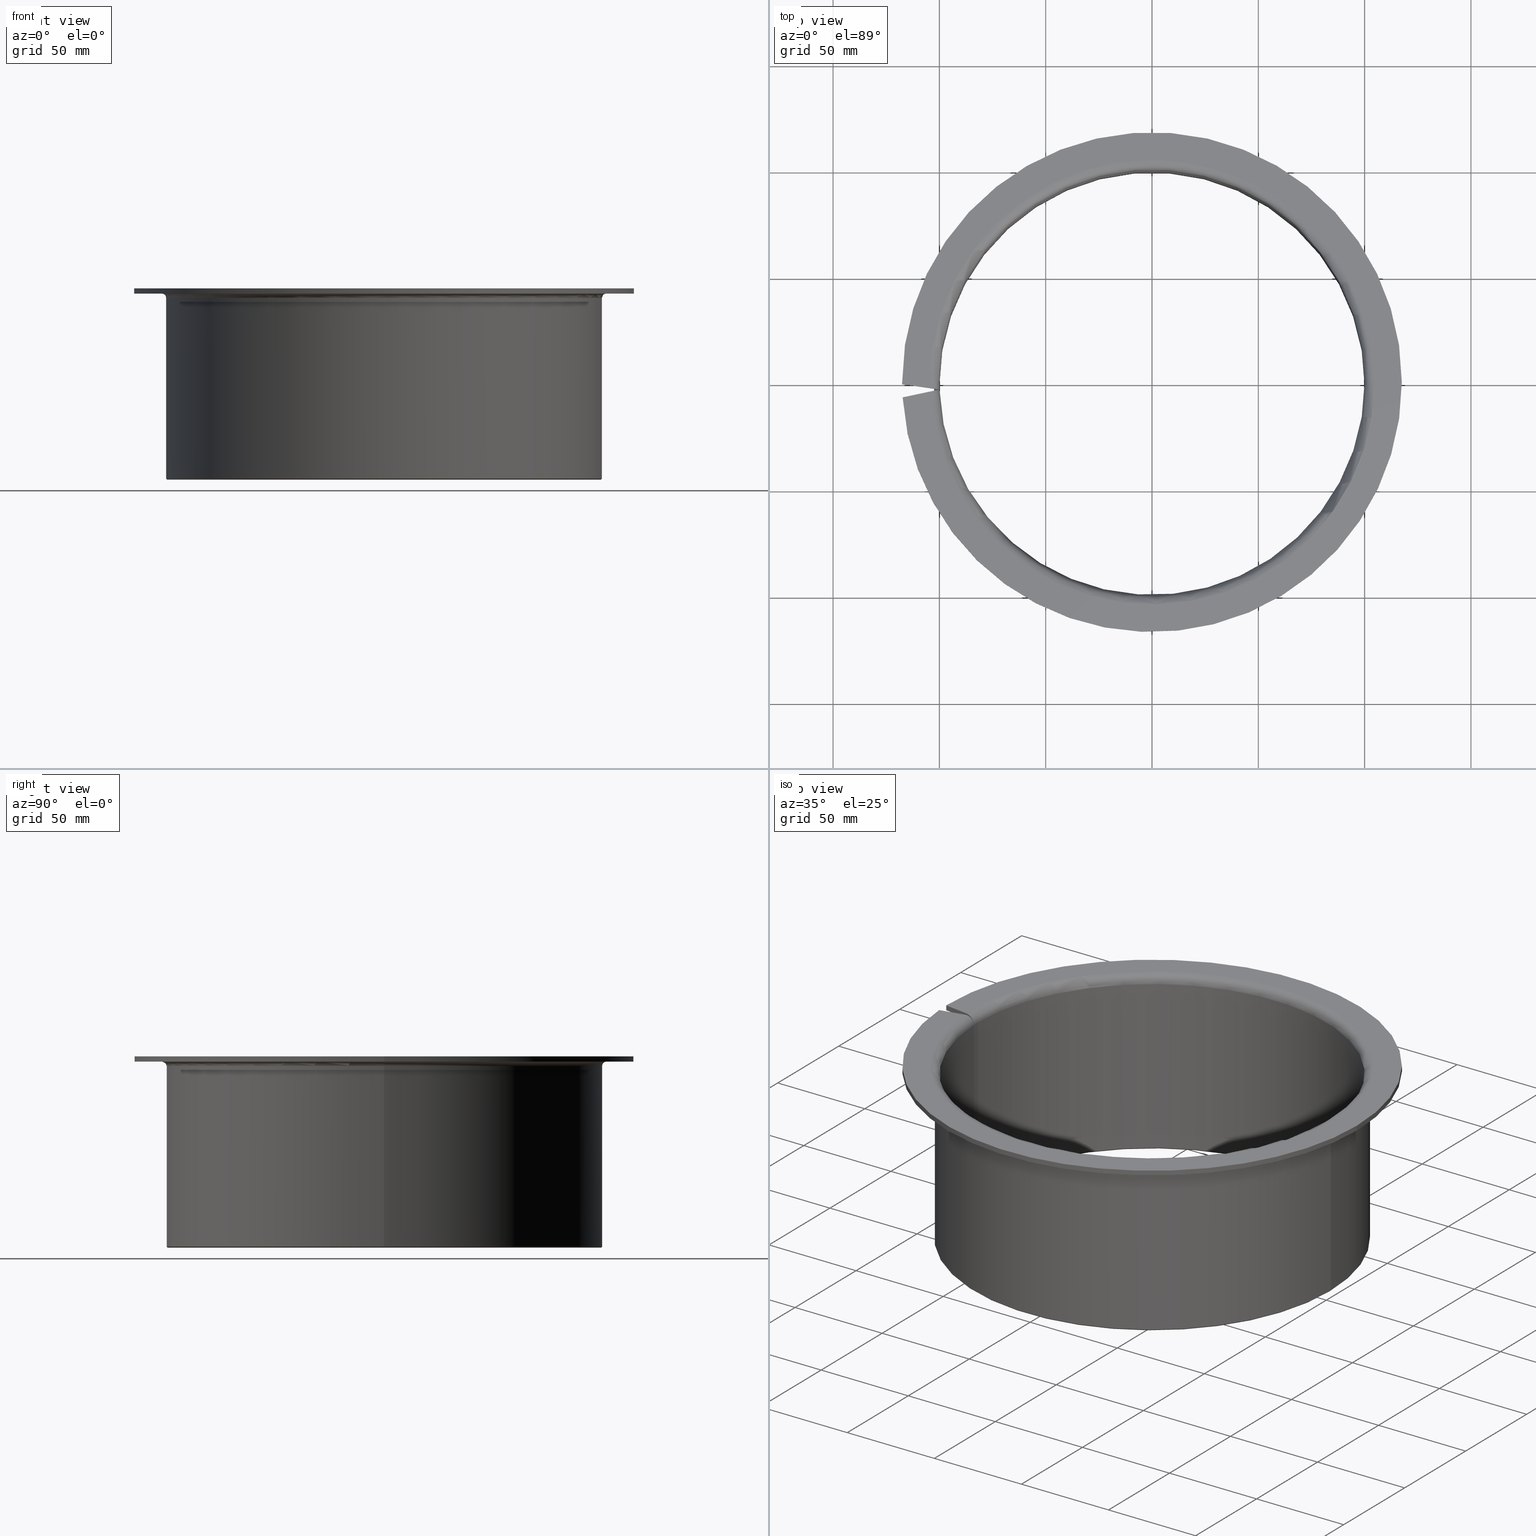
[diagram: canonical four-view strip — front | top / right | iso, engineering-drawing reading convention]
A machine part, canonical four-view strip (front | top / right | iso — engineering-drawing reading convention). The complete STEP part file that produces these views, byte-faithful:
ISO-10303-21;
HEADER;
FILE_DESCRIPTION(('STEP AP203'),'1');
FILE_NAME('490-ABB090-20090.stp','2016-09-23T15:05:36',(' '),(' '),'Spatial InterOp 3D',' ',' ');
FILE_SCHEMA(('CONFIG_CONTROL_DESIGN'));
ENDSEC;
DATA;
#1=DESIGN_CONTEXT('',#27,'design');
#2=APPLICATION_PROTOCOL_DEFINITION('INTERNATIONAL STANDARD','config_control_design',1994,#27);
#3=PRODUCT_CATEGORY_RELATIONSHIP('NONE','NONE',#28,#29);
#4=DATE_AND_TIME(#30,#31);
#5=DATE_TIME_ROLE('creation_date');
#6=DATE_TIME_ROLE('classification_date');
#7=PERSON_AND_ORGANIZATION_ROLE('creator');
#8=PERSON_AND_ORGANIZATION_ROLE('design_supplier');
#9=PERSON_AND_ORGANIZATION_ROLE('classification_officer');
#10=PERSON_AND_ORGANIZATION_ROLE('design_owner');
#11=APPROVAL_PERSON_ORGANIZATION(#32,#33,#34);
#12=APPROVAL_DATE_TIME(#4,#33);
#13=CC_DESIGN_APPROVAL(#33,(#35,#36,#37));
#14=CC_DESIGN_DATE_AND_TIME_ASSIGNMENT(#4,#5,(#37));
#15=CC_DESIGN_DATE_AND_TIME_ASSIGNMENT(#4,#6,(#35));
#16=CC_DESIGN_PERSON_AND_ORGANIZATION_ASSIGNMENT(#32,#10,(#38));
#17=CC_DESIGN_PERSON_AND_ORGANIZATION_ASSIGNMENT(#32,#7,(#37));
#18=CC_DESIGN_PERSON_AND_ORGANIZATION_ASSIGNMENT(#32,#7,(#36));
#19=CC_DESIGN_PERSON_AND_ORGANIZATION_ASSIGNMENT(#32,#8,(#36));
#20=CC_DESIGN_SECURITY_CLASSIFICATION(#35,(#36));
#21=CC_DESIGN_PERSON_AND_ORGANIZATION_ASSIGNMENT(#32,#9,(#35));
#22=SHAPE_DEFINITION_REPRESENTATION(#39,#40);
#23= (GEOMETRIC_REPRESENTATION_CONTEXT(3)GLOBAL_UNCERTAINTY_ASSIGNED_CONTEXT((#43))GLOBAL_UNIT_ASSIGNED_CONTEXT((#45,#46,#47))REPRESENTATION_CONTEXT('NONE','WORKSPACE'));
#27=APPLICATION_CONTEXT('CONFIGURATION CONTROLLED 3D DESIGNS OF MECHANICAL PARTS AND ASSEMBLIES');
#28=PRODUCT_CATEGORY('part','NONE');
#29=PRODUCT_RELATED_PRODUCT_CATEGORY('detail',' ',(#38));
#30=CALENDAR_DATE(2016,23,8);
#31=LOCAL_TIME(17,5,36.0,#49);
#32=PERSON_AND_ORGANIZATION(#50,#51);
#33=APPROVAL(#52,'SOLID MODEL');
#34=APPROVAL_ROLE('APPROVED');
#35=SECURITY_CLASSIFICATION('','',#53);
#36=PRODUCT_DEFINITION_FORMATION_WITH_SPECIFIED_SOURCE(' ','NONE',#38,.NOT_KNOWN.);
#37=PRODUCT_DEFINITION('NONE','NONE',#36,#1);
#38=PRODUCT('1','1','PART-1-DESC',(#54));
#39=PRODUCT_DEFINITION_SHAPE('NONE','NONE',#37);
#40=ADVANCED_BREP_SHAPE_REPRESENTATION('1',(#55,#56),#23);
#43=UNCERTAINTY_MEASURE_WITH_UNIT(LENGTH_MEASURE(1.0E-006),#45,'','');
#45= (CONVERSION_BASED_UNIT('MILLIMETRE',#59)LENGTH_UNIT()NAMED_UNIT(#62));
#46= (NAMED_UNIT(#64)PLANE_ANGLE_UNIT()SI_UNIT($,.RADIAN.));
#47= (NAMED_UNIT(#64)SOLID_ANGLE_UNIT()SI_UNIT($,.STERADIAN.));
#49=COORDINATED_UNIVERSAL_TIME_OFFSET(1,0,.AHEAD.);
#50=PERSON('','UNSPECIFIED',$,$,$,$);
#51=ORGANIZATION('UNSPECIFIED','UNSPECIFIED','UNSPECIFIED');
#52=APPROVAL_STATUS('approved');
#53=SECURITY_CLASSIFICATION_LEVEL('unclassified');
#54=MECHANICAL_CONTEXT('',#27,'mechanical');
#55=MANIFOLD_SOLID_BREP('1',#70);
#56=AXIS2_PLACEMENT_3D('',#71,#72,#73);
#59=LENGTH_MEASURE_WITH_UNIT(LENGTH_MEASURE(1.0),#74);
#62=DIMENSIONAL_EXPONENTS(1.0,0.0,0.0,0.0,0.0,0.0,0.0);
#64=DIMENSIONAL_EXPONENTS(0.0,0.0,0.0,0.0,0.0,0.0,0.0);
#70=CLOSED_SHELL('',(#75,#76,#77,#78,#79,#80,#81,#82,#83,#84,#85,#86,#87,#88,#89,#90,#91,#92,#93,#94,#95,#96,#97,#98,#99,#100));
#71=CARTESIAN_POINT('',(0.0,0.0,0.0));
#72=DIRECTION('',(0.0,0.0,1.0));
#73=DIRECTION('',(1.0,0.0,0.0));
#74= (NAMED_UNIT(#62)LENGTH_UNIT()SI_UNIT(.MILLI.,.METRE.));
#75=ADVANCED_FACE('',(#102),#103,.F.);
#76=ADVANCED_FACE('',(#104),#105,.F.);
#77=ADVANCED_FACE('',(#106),#107,.T.);
#78=ADVANCED_FACE('',(#108),#109,.T.);
#79=ADVANCED_FACE('',(#110),#111,.T.);
#80=ADVANCED_FACE('',(#112),#113,.T.);
#81=ADVANCED_FACE('',(#114),#115,.F.);
#82=ADVANCED_FACE('',(#116),#117,.F.);
#83=ADVANCED_FACE('',(#118),#119,.T.);
#84=ADVANCED_FACE('',(#120),#121,.T.);
#85=ADVANCED_FACE('',(#122),#123,.T.);
#86=ADVANCED_FACE('',(#124),#125,.T.);
#87=ADVANCED_FACE('',(#126),#127,.F.);
#88=ADVANCED_FACE('',(#128),#129,.F.);
#89=ADVANCED_FACE('',(#130),#131,.T.);
#90=ADVANCED_FACE('',(#132),#133,.F.);
#91=ADVANCED_FACE('',(#134),#135,.T.);
#92=ADVANCED_FACE('',(#136),#137,.T.);
#93=ADVANCED_FACE('',(#138),#139,.T.);
#94=ADVANCED_FACE('',(#140),#141,.T.);
#95=ADVANCED_FACE('',(#142),#143,.F.);
#96=ADVANCED_FACE('',(#144),#145,.T.);
#97=ADVANCED_FACE('',(#146),#147,.T.);
#98=ADVANCED_FACE('',(#148),#149,.T.);
#99=ADVANCED_FACE('',(#150),#151,.F.);
#100=ADVANCED_FACE('',(#152),#153,.F.);
#102=FACE_OUTER_BOUND('',#154,.T.);
#103=CONICAL_SURFACE('',#155,100.25,0.785398163397455);
#104=FACE_OUTER_BOUND('',#156,.T.);
#105=CONICAL_SURFACE('',#157,100.25,0.785398163397455);
#106=FACE_OUTER_BOUND('',#158,.T.);
#107=CONICAL_SURFACE('',#159,102.25,0.785398163397455);
#108=FACE_OUTER_BOUND('',#160,.T.);
#109=CONICAL_SURFACE('',#161,102.25,0.785398163397455);
#110=FACE_OUTER_BOUND('',#162,.T.);
#111=CYLINDRICAL_SURFACE('',#163,102.5);
#112=FACE_OUTER_BOUND('',#164,.T.);
#113=CYLINDRICAL_SURFACE('',#165,102.5);
#114=FACE_OUTER_BOUND('',#166,.T.);
#115=TOROIDAL_SURFACE('',#167,104.5,2.0);
#116=FACE_OUTER_BOUND('',#168,.T.);
#117=TOROIDAL_SURFACE('',#169,104.5,2.0);
#118=FACE_OUTER_BOUND('',#170,.T.);
#119=CYLINDRICAL_SURFACE('',#171,117.5);
#120=FACE_OUTER_BOUND('',#172,.T.);
#121=CYLINDRICAL_SURFACE('',#173,117.5);
#122=FACE_OUTER_BOUND('',#174,.T.);
#123=TOROIDAL_SURFACE('',#175,104.5,4.5);
#124=FACE_OUTER_BOUND('',#176,.T.);
#125=TOROIDAL_SURFACE('',#177,104.5,4.5);
#126=FACE_OUTER_BOUND('',#178,.T.);
#127=CYLINDRICAL_SURFACE('',#179,100.0);
#128=FACE_OUTER_BOUND('',#180,.T.);
#129=CYLINDRICAL_SURFACE('',#181,100.0);
#130=FACE_OUTER_BOUND('',#182,.T.);
#131=PLANE('',#183);
#132=FACE_OUTER_BOUND('',#184,.T.);
#133=CYLINDRICAL_SURFACE('',#185,100.0);
#134=FACE_OUTER_BOUND('',#186,.T.);
#135=TOROIDAL_SURFACE('',#187,104.5,4.5);
#136=FACE_OUTER_BOUND('',#188,.T.);
#137=PLANE('',#189);
#138=FACE_OUTER_BOUND('',#190,.T.);
#139=CYLINDRICAL_SURFACE('',#191,117.5);
#140=FACE_OUTER_BOUND('',#192,.T.);
#141=PLANE('',#193);
#142=FACE_OUTER_BOUND('',#194,.T.);
#143=TOROIDAL_SURFACE('',#195,104.5,2.0);
#144=FACE_OUTER_BOUND('',#196,.T.);
#145=CYLINDRICAL_SURFACE('',#197,102.5);
#146=FACE_OUTER_BOUND('',#198,.T.);
#147=CONICAL_SURFACE('',#199,102.25,0.785398163397455);
#148=FACE_OUTER_BOUND('',#200,.T.);
#149=PLANE('',#201);
#150=FACE_OUTER_BOUND('',#202,.T.);
#151=CONICAL_SURFACE('',#203,100.25,0.785398163397455);
#152=FACE_OUTER_BOUND('',#204,.T.);
#153=PLANE('',#205);
#154=EDGE_LOOP('',(#206,#207,#208,#209));
#155=AXIS2_PLACEMENT_3D('',#210,#211,#212);
#156=EDGE_LOOP('',(#213,#214,#215,#216));
#157=AXIS2_PLACEMENT_3D('',#217,#218,#219);
#158=EDGE_LOOP('',(#220,#221,#222,#223));
#159=AXIS2_PLACEMENT_3D('',#224,#225,#226);
#160=EDGE_LOOP('',(#227,#228,#229,#230));
#161=AXIS2_PLACEMENT_3D('',#231,#232,#233);
#162=EDGE_LOOP('',(#234,#235,#236,#237));
#163=AXIS2_PLACEMENT_3D('',#238,#239,#240);
#164=EDGE_LOOP('',(#241,#242,#243,#244));
#165=AXIS2_PLACEMENT_3D('',#245,#246,#247);
#166=EDGE_LOOP('',(#248,#249,#250,#251));
#167=AXIS2_PLACEMENT_3D('',#252,#253,#254);
#168=EDGE_LOOP('',(#255,#256,#257,#258));
#169=AXIS2_PLACEMENT_3D('',#259,#260,#261);
#170=EDGE_LOOP('',(#262,#263,#264,#265));
#171=AXIS2_PLACEMENT_3D('',#266,#267,#268);
#172=EDGE_LOOP('',(#269,#270,#271,#272));
#173=AXIS2_PLACEMENT_3D('',#273,#274,#275);
#174=EDGE_LOOP('',(#276,#277,#278,#279));
#175=AXIS2_PLACEMENT_3D('',#280,#281,#282);
#176=EDGE_LOOP('',(#283,#284,#285,#286));
#177=AXIS2_PLACEMENT_3D('',#287,#288,#289);
#178=EDGE_LOOP('',(#290,#291,#292,#293));
#179=AXIS2_PLACEMENT_3D('',#294,#295,#296);
#180=EDGE_LOOP('',(#297,#298,#299,#300));
#181=AXIS2_PLACEMENT_3D('',#301,#302,#303);
#182=EDGE_LOOP('',(#304,#305,#306,#307,#308,#309,#310,#311,#312,#313));
#183=AXIS2_PLACEMENT_3D('',#314,#315,#316);
#184=EDGE_LOOP('',(#317,#318,#319,#320));
#185=AXIS2_PLACEMENT_3D('',#321,#322,#323);
#186=EDGE_LOOP('',(#324,#325,#326,#327));
#187=AXIS2_PLACEMENT_3D('',#328,#329,#330);
#188=EDGE_LOOP('',(#331,#332,#333,#334,#335,#336,#337,#338));
#189=AXIS2_PLACEMENT_3D('',#339,#340,#341);
#190=EDGE_LOOP('',(#342,#343,#344,#345));
#191=AXIS2_PLACEMENT_3D('',#346,#347,#348);
#192=EDGE_LOOP('',(#349,#350,#351,#352,#353,#354,#355,#356));
#193=AXIS2_PLACEMENT_3D('',#357,#358,#359);
#194=EDGE_LOOP('',(#360,#361,#362,#363));
#195=AXIS2_PLACEMENT_3D('',#364,#365,#366);
#196=EDGE_LOOP('',(#367,#368,#369,#370));
#197=AXIS2_PLACEMENT_3D('',#371,#372,#373);
#198=EDGE_LOOP('',(#374,#375,#376,#377));
#199=AXIS2_PLACEMENT_3D('',#378,#379,#380);
#200=EDGE_LOOP('',(#381,#382,#383,#384,#385,#386,#387,#388));
#201=AXIS2_PLACEMENT_3D('',#389,#390,#391);
#202=EDGE_LOOP('',(#392,#393,#394,#395));
#203=AXIS2_PLACEMENT_3D('',#396,#397,#398);
#204=EDGE_LOOP('',(#399,#400,#401,#402,#403,#404,#405,#406,#407,#408));
#205=AXIS2_PLACEMENT_3D('',#409,#410,#411);
#206=ORIENTED_EDGE('',*,*,#412,.T.);
#207=ORIENTED_EDGE('',*,*,#413,.F.);
#208=ORIENTED_EDGE('',*,*,#414,.T.);
#209=ORIENTED_EDGE('',*,*,#415,.T.);
#210=CARTESIAN_POINT('',(1.38670259942823E-030,7.30296441936522E-016,0.250000000000002));
#211=DIRECTION('',(1.16269284789061E-031,6.12323399573677E-017,-1.0));
#212=DIRECTION('',(-1.0,1.87715863181855E-015,-1.32646929163973E-033));
#213=ORIENTED_EDGE('',*,*,#416,.F.);
#214=ORIENTED_EDGE('',*,*,#417,.F.);
#215=ORIENTED_EDGE('',*,*,#412,.F.);
#216=ORIENTED_EDGE('',*,*,#418,.T.);
#217=CARTESIAN_POINT('',(1.38670259942823E-030,7.30296441936522E-016,0.250000000000002));
#218=DIRECTION('',(1.16269284789061E-031,6.12323399573677E-017,-1.0));
#219=DIRECTION('',(-1.0,1.87715863181855E-015,-1.32646929163973E-033));
#220=ORIENTED_EDGE('',*,*,#419,.F.);
#221=ORIENTED_EDGE('',*,*,#420,.F.);
#222=ORIENTED_EDGE('',*,*,#421,.T.);
#223=ORIENTED_EDGE('',*,*,#422,.T.);
#224=CARTESIAN_POINT('',(1.38670259942823E-030,7.30296441936522E-016,0.250000000000002));
#225=DIRECTION('',(-1.16269284789061E-031,-6.12323399573677E-017,1.0));
#226=DIRECTION('',(-1.0,1.87715863181855E-015,-1.32646929163973E-033));
#227=ORIENTED_EDGE('',*,*,#423,.F.);
#228=ORIENTED_EDGE('',*,*,#424,.T.);
#229=ORIENTED_EDGE('',*,*,#425,.T.);
#230=ORIENTED_EDGE('',*,*,#426,.F.);
#231=CARTESIAN_POINT('',(1.38670259942823E-030,7.30296441936522E-016,0.250000000000002));
#232=DIRECTION('',(-1.16269284789061E-031,-6.12323399573677E-017,1.0));
#233=DIRECTION('',(-1.0,1.87715863181855E-015,-1.32646929163973E-033));
#234=ORIENTED_EDGE('',*,*,#427,.F.);
#235=ORIENTED_EDGE('',*,*,#428,.F.);
#236=ORIENTED_EDGE('',*,*,#429,.T.);
#237=ORIENTED_EDGE('',*,*,#420,.T.);
#238=CARTESIAN_POINT('',(-2.8295281413662E-030,-1.49014960731379E-015,43.0));
#239=DIRECTION('',(-1.16269284789061E-031,-6.12323399573677E-017,1.0));
#240=DIRECTION('',(-1.0,1.87715863181855E-015,-1.32646929163974E-033));
#241=ORIENTED_EDGE('',*,*,#430,.F.);
#242=ORIENTED_EDGE('',*,*,#426,.T.);
#243=ORIENTED_EDGE('',*,*,#431,.T.);
#244=ORIENTED_EDGE('',*,*,#432,.F.);
#245=CARTESIAN_POINT('',(-2.8295281413662E-030,-1.49014960731379E-015,43.0));
#246=DIRECTION('',(-1.16269284789061E-031,-6.12323399573677E-017,1.0));
#247=DIRECTION('',(-1.0,1.87715863181855E-015,-1.32646929163974E-033));
#248=ORIENTED_EDGE('',*,*,#433,.T.);
#249=ORIENTED_EDGE('',*,*,#432,.T.);
#250=ORIENTED_EDGE('',*,*,#434,.T.);
#251=ORIENTED_EDGE('',*,*,#435,.F.);
#252=CARTESIAN_POINT('',(2.22044604925031E-015,-3.71059565656411E-015,85.5));
#253=DIRECTION('',(-1.16269284789061E-031,-6.12323399573677E-017,1.0));
#254=DIRECTION('',(-1.0,1.89882151931499E-015,0.0));
#255=ORIENTED_EDGE('',*,*,#436,.F.);
#256=ORIENTED_EDGE('',*,*,#437,.T.);
#257=ORIENTED_EDGE('',*,*,#433,.F.);
#258=ORIENTED_EDGE('',*,*,#438,.F.);
#259=CARTESIAN_POINT('',(2.22044604925031E-015,-3.71059565656411E-015,85.5));
#260=DIRECTION('',(-1.16269284789061E-031,-6.12323399573677E-017,1.0));
#261=DIRECTION('',(-1.0,1.89882151931499E-015,0.0));
#262=ORIENTED_EDGE('',*,*,#439,.F.);
#263=ORIENTED_EDGE('',*,*,#440,.F.);
#264=ORIENTED_EDGE('',*,*,#441,.T.);
#265=ORIENTED_EDGE('',*,*,#442,.T.);
#266=CARTESIAN_POINT('',(-7.04575888216064E-030,-3.7105956565641E-015,88.75));
#267=DIRECTION('',(-1.16269284789061E-031,-6.12323399573677E-017,1.0));
#268=DIRECTION('',(-1.0,1.87715863181855E-015,-1.32646929163973E-033));
#269=ORIENTED_EDGE('',*,*,#443,.F.);
#270=ORIENTED_EDGE('',*,*,#444,.T.);
#271=ORIENTED_EDGE('',*,*,#445,.T.);
#272=ORIENTED_EDGE('',*,*,#446,.F.);
#273=CARTESIAN_POINT('',(-7.04575888216064E-030,-3.7105956565641E-015,88.75));
#274=DIRECTION('',(-1.16269284789061E-031,-6.12323399573677E-017,1.0));
#275=DIRECTION('',(-1.0,1.87715863181855E-015,-1.32646929163973E-033));
#276=ORIENTED_EDGE('',*,*,#447,.F.);
#277=ORIENTED_EDGE('',*,*,#448,.F.);
#278=ORIENTED_EDGE('',*,*,#449,.T.);
#279=ORIENTED_EDGE('',*,*,#450,.T.);
#280=CARTESIAN_POINT('',(2.22044604925031E-015,-3.71059565656411E-015,85.5));
#281=DIRECTION('',(-1.16269284789061E-031,-6.12323399573677E-017,1.0));
#282=DIRECTION('',(-1.0,1.89882151931499E-015,0.0));
#283=ORIENTED_EDGE('',*,*,#451,.F.);
#284=ORIENTED_EDGE('',*,*,#452,.T.);
#285=ORIENTED_EDGE('',*,*,#453,.T.);
#286=ORIENTED_EDGE('',*,*,#454,.F.);
#287=CARTESIAN_POINT('',(2.22044604925031E-015,-3.71059565656411E-015,85.5));
#288=DIRECTION('',(-1.16269284789061E-031,-6.12323399573677E-017,1.0));
#289=DIRECTION('',(-1.0,1.89882151931499E-015,0.0));
#290=ORIENTED_EDGE('',*,*,#455,.T.);
#291=ORIENTED_EDGE('',*,*,#415,.F.);
#292=ORIENTED_EDGE('',*,*,#456,.T.);
#293=ORIENTED_EDGE('',*,*,#448,.T.);
#294=CARTESIAN_POINT('',(-2.8295281413662E-030,-1.49014960731379E-015,43.0));
#295=DIRECTION('',(-1.16269284789061E-031,-6.12323399573677E-017,1.0));
#296=DIRECTION('',(-1.0,1.87715863181855E-015,-1.32646929163972E-033));
#297=ORIENTED_EDGE('',*,*,#457,.F.);
#298=ORIENTED_EDGE('',*,*,#418,.F.);
#299=ORIENTED_EDGE('',*,*,#455,.F.);
#300=ORIENTED_EDGE('',*,*,#458,.T.);
#301=CARTESIAN_POINT('',(-2.8295281413662E-030,-1.49014960731379E-015,43.0));
#302=DIRECTION('',(-1.16269284789061E-031,-6.12323399573677E-017,1.0));
#303=DIRECTION('',(-1.0,1.87715863181855E-015,-1.32646929163972E-033));
#304=ORIENTED_EDGE('',*,*,#459,.F.);
#305=ORIENTED_EDGE('',*,*,#460,.T.);
#306=ORIENTED_EDGE('',*,*,#453,.F.);
#307=ORIENTED_EDGE('',*,*,#461,.F.);
#308=ORIENTED_EDGE('',*,*,#445,.F.);
#309=ORIENTED_EDGE('',*,*,#462,.F.);
#310=ORIENTED_EDGE('',*,*,#434,.F.);
#311=ORIENTED_EDGE('',*,*,#431,.F.);
#312=ORIENTED_EDGE('',*,*,#425,.F.);
#313=ORIENTED_EDGE('',*,*,#463,.F.);
#314=CARTESIAN_POINT('',(-117.268773904887,-1.05442040344558,45.0));
#315=DIRECTION('',(-0.13917310096023,-0.990268068741547,3.4862242830457E-016));
#316=DIRECTION('',(7.52384945084923E-018,3.5099113241836E-016,1.0));
#317=ORIENTED_EDGE('',*,*,#457,.T.);
#318=ORIENTED_EDGE('',*,*,#454,.T.);
#319=ORIENTED_EDGE('',*,*,#460,.F.);
#320=ORIENTED_EDGE('',*,*,#464,.F.);
#321=CARTESIAN_POINT('',(-2.8295281413662E-030,-1.49014960731379E-015,43.0));
#322=DIRECTION('',(-1.16269284789061E-031,-6.12323399573677E-017,1.0));
#323=DIRECTION('',(-1.0,1.87715863181855E-015,-1.32646929163972E-033));
#324=ORIENTED_EDGE('',*,*,#451,.T.);
#325=ORIENTED_EDGE('',*,*,#458,.F.);
#326=ORIENTED_EDGE('',*,*,#447,.T.);
#327=ORIENTED_EDGE('',*,*,#465,.T.);
#328=CARTESIAN_POINT('',(2.22044604925031E-015,-3.71059565656411E-015,85.5));
#329=DIRECTION('',(-1.16269284789061E-031,-6.12323399573677E-017,1.0));
#330=DIRECTION('',(-1.0,1.89882151931499E-015,0.0));
#331=ORIENTED_EDGE('',*,*,#466,.T.);
#332=ORIENTED_EDGE('',*,*,#440,.T.);
#333=ORIENTED_EDGE('',*,*,#467,.T.);
#334=ORIENTED_EDGE('',*,*,#446,.T.);
#335=ORIENTED_EDGE('',*,*,#461,.T.);
#336=ORIENTED_EDGE('',*,*,#452,.F.);
#337=ORIENTED_EDGE('',*,*,#465,.F.);
#338=ORIENTED_EDGE('',*,*,#450,.F.);
#339=CARTESIAN_POINT('',(-111.0,2.04838146938149E-013,90.0));
#340=DIRECTION('',(-1.16269284789061E-031,-6.12323399573677E-017,1.0));
#341=DIRECTION('',(-1.0,1.89882151931499E-015,0.0));
#342=ORIENTED_EDGE('',*,*,#443,.T.);
#343=ORIENTED_EDGE('',*,*,#467,.F.);
#344=ORIENTED_EDGE('',*,*,#439,.T.);
#345=ORIENTED_EDGE('',*,*,#468,.T.);
#346=CARTESIAN_POINT('',(-7.04575888216064E-030,-3.7105956565641E-015,88.75));
#347=DIRECTION('',(-1.16269284789061E-031,-6.12323399573677E-017,1.0));
#348=DIRECTION('',(-1.0,1.87715863181855E-015,-1.32646929163973E-033));
#349=ORIENTED_EDGE('',*,*,#469,.T.);
#350=ORIENTED_EDGE('',*,*,#470,.T.);
#351=ORIENTED_EDGE('',*,*,#438,.T.);
#352=ORIENTED_EDGE('',*,*,#435,.T.);
#353=ORIENTED_EDGE('',*,*,#462,.T.);
#354=ORIENTED_EDGE('',*,*,#444,.F.);
#355=ORIENTED_EDGE('',*,*,#468,.F.);
#356=ORIENTED_EDGE('',*,*,#442,.F.);
#357=CARTESIAN_POINT('',(-111.0,2.04838146938149E-013,87.5));
#358=DIRECTION('',(-1.36642833800019E-015,6.12323399573702E-017,-1.0));
#359=DIRECTION('',(1.0,-1.89882151931499E-015,-1.36642833800019E-015));
#360=ORIENTED_EDGE('',*,*,#436,.T.);
#361=ORIENTED_EDGE('',*,*,#470,.F.);
#362=ORIENTED_EDGE('',*,*,#471,.T.);
#363=ORIENTED_EDGE('',*,*,#428,.T.);
#364=CARTESIAN_POINT('',(2.22044604925031E-015,-3.71059565656411E-015,85.5));
#365=DIRECTION('',(-1.16269284789061E-031,-6.12323399573677E-017,1.0));
#366=DIRECTION('',(-1.0,1.89882151931499E-015,0.0));
#367=ORIENTED_EDGE('',*,*,#430,.T.);
#368=ORIENTED_EDGE('',*,*,#437,.F.);
#369=ORIENTED_EDGE('',*,*,#427,.T.);
#370=ORIENTED_EDGE('',*,*,#472,.T.);
#371=CARTESIAN_POINT('',(-2.8295281413662E-030,-1.49014960731379E-015,43.0));
#372=DIRECTION('',(-1.16269284789061E-031,-6.12323399573677E-017,1.0));
#373=DIRECTION('',(-1.0,1.87715863181855E-015,-1.32646929163974E-033));
#374=ORIENTED_EDGE('',*,*,#423,.T.);
#375=ORIENTED_EDGE('',*,*,#472,.F.);
#376=ORIENTED_EDGE('',*,*,#419,.T.);
#377=ORIENTED_EDGE('',*,*,#473,.T.);
#378=CARTESIAN_POINT('',(1.38670259942823E-030,7.30296441936522E-016,0.250000000000002));
#379=DIRECTION('',(-1.16269284789061E-031,-6.12323399573677E-017,1.0));
#380=DIRECTION('',(-1.0,1.87715863181855E-015,-1.32646929163973E-033));
#381=ORIENTED_EDGE('',*,*,#474,.T.);
#382=ORIENTED_EDGE('',*,*,#413,.T.);
#383=ORIENTED_EDGE('',*,*,#417,.T.);
#384=ORIENTED_EDGE('',*,*,#475,.T.);
#385=ORIENTED_EDGE('',*,*,#463,.T.);
#386=ORIENTED_EDGE('',*,*,#424,.F.);
#387=ORIENTED_EDGE('',*,*,#473,.F.);
#388=ORIENTED_EDGE('',*,*,#422,.F.);
#389=CARTESIAN_POINT('',(-101.25,1.92985975272579E-013,-1.41435210304722E-015));
#390=DIRECTION('',(1.16269284789061E-031,6.12323399573677E-017,-1.0));
#391=DIRECTION('',(1.0,-1.89882151931499E-015,0.0));
#392=ORIENTED_EDGE('',*,*,#416,.T.);
#393=ORIENTED_EDGE('',*,*,#464,.T.);
#394=ORIENTED_EDGE('',*,*,#459,.T.);
#395=ORIENTED_EDGE('',*,*,#475,.F.);
#396=CARTESIAN_POINT('',(1.38670259942823E-030,7.30296441936522E-016,0.250000000000002));
#397=DIRECTION('',(1.16269284789061E-031,6.12323399573677E-017,-1.0));
#398=DIRECTION('',(-1.0,1.87715863181855E-015,-1.32646929163973E-033));
#399=ORIENTED_EDGE('',*,*,#414,.F.);
#400=ORIENTED_EDGE('',*,*,#474,.F.);
#401=ORIENTED_EDGE('',*,*,#421,.F.);
#402=ORIENTED_EDGE('',*,*,#429,.F.);
#403=ORIENTED_EDGE('',*,*,#471,.F.);
#404=ORIENTED_EDGE('',*,*,#469,.F.);
#405=ORIENTED_EDGE('',*,*,#441,.F.);
#406=ORIENTED_EDGE('',*,*,#466,.F.);
#407=ORIENTED_EDGE('',*,*,#449,.F.);
#408=ORIENTED_EDGE('',*,*,#456,.F.);
#409=CARTESIAN_POINT('',(-117.056665714752,-7.12840425955755,45.0));
#410=DIRECTION('',(0.207911690817597,-0.97814760073384,3.40985957008512E-016));
#411=DIRECTION('',(1.1960470641942E-017,3.51146062644295E-016,1.0));
#412=EDGE_CURVE('',#476,#477,#478,.T.);
#413=EDGE_CURVE('',#479,#477,#480,.T.);
#414=EDGE_CURVE('',#479,#481,#482,.T.);
#415=EDGE_CURVE('',#481,#476,#483,.T.);
#416=EDGE_CURVE('',#484,#485,#486,.T.);
#417=EDGE_CURVE('',#477,#484,#487,.T.);
#418=EDGE_CURVE('',#476,#485,#488,.T.);
#419=EDGE_CURVE('',#489,#490,#491,.T.);
#420=EDGE_CURVE('',#492,#489,#493,.T.);
#421=EDGE_CURVE('',#492,#494,#495,.T.);
#422=EDGE_CURVE('',#494,#490,#496,.T.);
#423=EDGE_CURVE('',#497,#498,#499,.T.);
#424=EDGE_CURVE('',#497,#500,#501,.T.);
#425=EDGE_CURVE('',#500,#502,#503,.T.);
#426=EDGE_CURVE('',#498,#502,#504,.T.);
#427=EDGE_CURVE('',#505,#489,#506,.T.);
#428=EDGE_CURVE('',#507,#505,#508,.T.);
#429=EDGE_CURVE('',#507,#492,#509,.T.);
#430=EDGE_CURVE('',#498,#510,#511,.T.);
#431=EDGE_CURVE('',#502,#512,#513,.T.);
#432=EDGE_CURVE('',#510,#512,#514,.T.);
#433=EDGE_CURVE('',#515,#510,#516,.T.);
#434=EDGE_CURVE('',#512,#517,#518,.T.);
#435=EDGE_CURVE('',#515,#517,#519,.T.);
#436=EDGE_CURVE('',#505,#520,#521,.T.);
#437=EDGE_CURVE('',#505,#510,#522,.T.);
#438=EDGE_CURVE('',#520,#515,#523,.T.);
#439=EDGE_CURVE('',#524,#525,#526,.T.);
#440=EDGE_CURVE('',#527,#524,#528,.T.);
#441=EDGE_CURVE('',#527,#529,#530,.T.);
#442=EDGE_CURVE('',#529,#525,#531,.T.);
#443=EDGE_CURVE('',#532,#533,#534,.T.);
#444=EDGE_CURVE('',#532,#535,#536,.T.);
#445=EDGE_CURVE('',#535,#537,#538,.T.);
#446=EDGE_CURVE('',#533,#537,#539,.T.);
#447=EDGE_CURVE('',#540,#541,#542,.T.);
#448=EDGE_CURVE('',#543,#540,#544,.T.);
#449=EDGE_CURVE('',#543,#545,#546,.T.);
#450=EDGE_CURVE('',#545,#541,#547,.T.);
#451=EDGE_CURVE('',#548,#549,#550,.T.);
#452=EDGE_CURVE('',#548,#551,#552,.T.);
#453=EDGE_CURVE('',#551,#543,#553,.T.);
#454=EDGE_CURVE('',#549,#543,#554,.T.);
#455=EDGE_CURVE('',#540,#476,#555,.T.);
#456=EDGE_CURVE('',#481,#543,#556,.T.);
#457=EDGE_CURVE('',#485,#549,#557,.T.);
#458=EDGE_CURVE('',#540,#549,#558,.T.);
#459=EDGE_CURVE('',#481,#559,#560,.T.);
#460=EDGE_CURVE('',#481,#543,#561,.T.);
#461=EDGE_CURVE('',#537,#551,#562,.T.);
#462=EDGE_CURVE('',#517,#535,#563,.T.);
#463=EDGE_CURVE('',#559,#500,#564,.T.);
#464=EDGE_CURVE('',#485,#481,#565,.T.);
#465=EDGE_CURVE('',#541,#548,#566,.T.);
#466=EDGE_CURVE('',#545,#527,#567,.T.);
#467=EDGE_CURVE('',#524,#533,#568,.T.);
#468=EDGE_CURVE('',#525,#532,#569,.T.);
#469=EDGE_CURVE('',#529,#570,#571,.T.);
#470=EDGE_CURVE('',#570,#520,#572,.T.);
#471=EDGE_CURVE('',#570,#507,#573,.T.);
#472=EDGE_CURVE('',#489,#498,#574,.T.);
#473=EDGE_CURVE('',#490,#497,#575,.T.);
#474=EDGE_CURVE('',#494,#479,#576,.T.);
#475=EDGE_CURVE('',#484,#559,#577,.T.);
#476=VERTEX_POINT('',#578);
#477=VERTEX_POINT('',#579);
#478=LINE('',#580,#581);
#479=VERTEX_POINT('',#582);
#480=CIRCLE('',#583,100.5);
#481=VERTEX_POINT('',#584);
#482=B_SPLINE_CURVE_WITH_KNOTS('',2,(#585,#586,#587),.UNSPECIFIED.,.F.,.F.,(3,3),(0.0,0.0712553812670569),.UNSPECIFIED.);
#483=CIRCLE('',#588,100.0);
#484=VERTEX_POINT('',#589);
#485=VERTEX_POINT('',#590);
#486=LINE('',#591,#592);
#487=CIRCLE('',#593,100.5);
#488=CIRCLE('',#594,100.0);
#489=VERTEX_POINT('',#595);
#490=VERTEX_POINT('',#596);
#491=LINE('',#597,#598);
#492=VERTEX_POINT('',#599);
#493=CIRCLE('',#600,102.5);
#494=VERTEX_POINT('',#601);
#495=B_SPLINE_CURVE_WITH_KNOTS('',2,(#602,#603,#604),.UNSPECIFIED.,.F.,.F.,(3,3),(0.0,0.0712337339671794),.UNSPECIFIED.);
#496=CIRCLE('',#605,102.0);
#497=VERTEX_POINT('',#606);
#498=VERTEX_POINT('',#607);
#499=LINE('',#608,#609);
#500=VERTEX_POINT('',#610);
#501=CIRCLE('',#611,102.0);
#502=VERTEX_POINT('',#612);
#503=B_SPLINE_CURVE_WITH_KNOTS('',2,(#613,#614,#615),.UNSPECIFIED.,.F.,.F.,(3,3),(0.0,0.0712337339671814),.UNSPECIFIED.);
#504=CIRCLE('',#616,102.5);
#505=VERTEX_POINT('',#617);
#506=LINE('',#618,#619);
#507=VERTEX_POINT('',#620);
#508=CIRCLE('',#621,102.5);
#509=LINE('',#622,#623);
#510=VERTEX_POINT('',#624);
#511=LINE('',#625,#626);
#512=VERTEX_POINT('',#627);
#513=LINE('',#628,#629);
#514=CIRCLE('',#630,102.5);
#515=VERTEX_POINT('',#631);
#516=CIRCLE('',#632,2.0);
#517=VERTEX_POINT('',#633);
#518=B_SPLINE_CURVE_WITH_KNOTS('',3,(#634,#635,#636,#637,#638,#639,#640,#641,#642,#643,#644,#645,#646,#647),.UNSPECIFIED.,.F.,.F.,(4,2,2,2,2,2,4),(0.522861404913859,0.596569437735014,0.67027747055617,0.744536294377691,0.819451086709998,0.894889010948854,0.970307325663183),.UNSPECIFIED.);
#519=CIRCLE('',#648,104.5);
#520=VERTEX_POINT('',#649);
#521=CIRCLE('',#650,2.0);
#522=CIRCLE('',#651,102.5);
#523=CIRCLE('',#652,104.5);
#524=VERTEX_POINT('',#653);
#525=VERTEX_POINT('',#654);
#526=LINE('',#655,#656);
#527=VERTEX_POINT('',#657);
#528=CIRCLE('',#658,117.5);
#529=VERTEX_POINT('',#659);
#530=LINE('',#660,#661);
#531=CIRCLE('',#662,117.5);
#532=VERTEX_POINT('',#663);
#533=VERTEX_POINT('',#664);
#534=LINE('',#665,#666);
#535=VERTEX_POINT('',#667);
#536=CIRCLE('',#668,117.5);
#537=VERTEX_POINT('',#669);
#538=LINE('',#670,#671);
#539=CIRCLE('',#672,117.5);
#540=VERTEX_POINT('',#673);
#541=VERTEX_POINT('',#674);
#542=CIRCLE('',#675,4.5);
#543=VERTEX_POINT('',#676);
#544=CIRCLE('',#677,100.0);
#545=VERTEX_POINT('',#678);
#546=B_SPLINE_CURVE_WITH_KNOTS('',3,(#679,#680,#681,#682,#683,#684,#685,#686,#687,#688,#689,#690,#691,#692,#693,#694,#695,#696,#697,#698,#699,#700),.UNSPECIFIED.,.F.,.F.,(4,2,2,2,2,2,2,2,2,2,4),(1.25938452795963,1.34229239841091,1.42520026886219,1.50810813931348,1.59166693832328,1.67522573733309,1.75953879120295,1.84385184507282,1.92873356000877,2.01361527494473,2.0984473502713),.UNSPECIFIED.);
#547=CIRCLE('',#701,104.5);
#548=VERTEX_POINT('',#702);
#549=VERTEX_POINT('',#703);
#550=CIRCLE('',#704,4.5);
#551=VERTEX_POINT('',#705);
#552=CIRCLE('',#706,104.5);
#553=B_SPLINE_CURVE_WITH_KNOTS('',3,(#707,#708,#709,#710,#711,#712,#713,#714,#715,#716,#717,#718,#719,#720,#721,#722,#723,#724,#725,#726,#727,#728),.UNSPECIFIED.,.F.,.F.,(4,2,2,2,2,2,2,2,2,2,4),(0.586137446550532,0.670969521877112,0.755851236813076,0.840732951749039,0.925046005618906,1.00935905948877,1.09291785849858,1.17647665750839,1.25938452795967,1.34229239841095,1.42550787462823),.UNSPECIFIED.);
#554=CIRCLE('',#729,100.0);
#555=LINE('',#730,#731);
#556=LINE('',#732,#733);
#557=LINE('',#734,#735);
#558=CIRCLE('',#736,100.0);
#559=VERTEX_POINT('',#737);
#560=B_SPLINE_CURVE_WITH_KNOTS('',2,(#738,#739,#740),.UNSPECIFIED.,.F.,.F.,(3,3),(0.0,0.0712553812670619),.UNSPECIFIED.);
#561=LINE('',#741,#742);
#562=LINE('',#743,#744);
#563=LINE('',#745,#746);
#564=LINE('',#747,#748);
#565=CIRCLE('',#749,100.0);
#566=CIRCLE('',#750,104.5);
#567=LINE('',#751,#752);
#568=CIRCLE('',#753,117.5);
#569=CIRCLE('',#754,117.5);
#570=VERTEX_POINT('',#755);
#571=LINE('',#756,#757);
#572=CIRCLE('',#758,104.5);
#573=B_SPLINE_CURVE_WITH_KNOTS('',3,(#759,#760,#761,#762,#763,#764,#765,#766,#767,#768,#769,#770,#771,#772),.UNSPECIFIED.,.F.,.F.,(4,2,2,2,2,2,4),(0.222831549806843,0.298249864521166,0.373687788760013,0.448602581092316,0.52286140491384,0.596569437734995,0.670277470556151),.UNSPECIFIED.);
#574=CIRCLE('',#773,102.5);
#575=CIRCLE('',#774,102.0);
#576=LINE('',#775,#776);
#577=CIRCLE('',#777,100.5);
#578=CARTESIAN_POINT('',(100.0,-1.98850106332455E-013,0.500000000000007));
#579=CARTESIAN_POINT('',(100.5,-2.0021653830227E-013,-1.38777878078145E-015));
#580=CARTESIAN_POINT('',(100.25,-1.99731940559326E-013,0.250000000000002));
#581=VECTOR('',#778,1.0);
#582=CARTESIAN_POINT('',(-100.435662850785,-3.59550103928799,4.04271781375134E-014));
#583=AXIS2_PLACEMENT_3D('',#779,#780,#781);
#584=CARTESIAN_POINT('',(-99.9390827019096,-3.48994967024961,0.500000000000006));
#585=CARTESIAN_POINT('',(-100.435662850785,-3.59550103928799,3.35923676421648E-014));
#586=CARTESIAN_POINT('',(-100.186753592407,-3.54259374315941,0.250642732269035));
#587=CARTESIAN_POINT('',(-99.9390827019096,-3.48994967024961,0.500000000000015));
#588=AXIS2_PLACEMENT_3D('',#782,#783,#784);
#589=CARTESIAN_POINT('',(-100.5,2.01707747356121E-013,-1.38777878078145E-015));
#590=CARTESIAN_POINT('',(-100.0,2.01074556014203E-013,0.500000000000007));
#591=CARTESIAN_POINT('',(-100.25,2.01192533443199E-013,0.250000000000002));
#592=VECTOR('',#785,1.0);
#593=AXIS2_PLACEMENT_3D('',#786,#787,#788);
#594=AXIS2_PLACEMENT_3D('',#789,#790,#791);
#595=CARTESIAN_POINT('',(102.5,-2.03849164611788E-013,0.500000000000007));
#596=CARTESIAN_POINT('',(102.0,-2.0321597326987E-013,-1.38777878078145E-015));
#597=CARTESIAN_POINT('',(102.25,-2.03731187182792E-013,0.250000000000002));
#598=VECTOR('',#792,1.0);
#599=CARTESIAN_POINT('',(-102.421234679189,-4.01754736008213,0.500000000000006));
#600=AXIS2_PLACEMENT_3D('',#793,#794,#795);
#601=CARTESIAN_POINT('',(-101.924951768655,-3.91205917100345,4.09822896498259E-014));
#602=CARTESIAN_POINT('',(-102.421234679189,-4.01754736008213,0.500000000000014));
#603=CARTESIAN_POINT('',(-102.172486522507,-3.96467430717602,0.249370601700382));
#604=CARTESIAN_POINT('',(-101.924951768655,-3.91205917100345,3.41821736239969E-014));
#605=AXIS2_PLACEMENT_3D('',#796,#797,#798);
#606=CARTESIAN_POINT('',(-102.0,2.04707182323721E-013,-1.38777878078145E-015));
#607=CARTESIAN_POINT('',(-102.5,2.06073614293536E-013,0.500000000000007));
#608=CARTESIAN_POINT('',(-102.25,2.05191780066665E-013,0.250000000000002));
#609=VECTOR('',#799,1.0);
#610=CARTESIAN_POINT('',(-101.949559161724,-3.20739563043745,4.08782062412673E-014));
#611=AXIS2_PLACEMENT_3D('',#800,#801,#802);
#612=CARTESIAN_POINT('',(-102.451991636123,-3.13678335110373,0.500000000000005));
#613=CARTESIAN_POINT('',(-101.949559161724,-3.20739563043746,3.44944238496727E-014));
#614=CARTESIAN_POINT('',(-102.200161180502,-3.17217581354029,0.249370602476735));
#615=CARTESIAN_POINT('',(-102.451991636123,-3.13678335110373,0.500000000000015));
#616=AXIS2_PLACEMENT_3D('',#803,#804,#805);
#617=CARTESIAN_POINT('',(102.5,-2.1089243107761E-013,85.5));
#618=CARTESIAN_POINT('',(102.5,-2.06451539059976E-013,43.0));
#619=VECTOR('',#806,1.0);
#620=CARTESIAN_POINT('',(-102.421234679189,-4.0175473600821,85.5));
#621=AXIS2_PLACEMENT_3D('',#807,#808,#809);
#622=CARTESIAN_POINT('',(-102.421234679189,-4.01754736008212,43.0));
#623=VECTOR('',#810,10.0);
#624=CARTESIAN_POINT('',(-102.5,2.03471239764482E-013,85.5));
#625=CARTESIAN_POINT('',(-102.5,2.03471239845348E-013,43.0));
#626=VECTOR('',#811,1.0);
#627=CARTESIAN_POINT('',(-102.451991636123,-3.1367833511037,85.5));
#628=CARTESIAN_POINT('',(-102.451991636123,-3.13678335110371,43.0));
#629=VECTOR('',#812,10.0);
#630=AXIS2_PLACEMENT_3D('',#813,#814,#815);
#631=CARTESIAN_POINT('',(-104.5,2.07391347483027E-013,87.5));
#632=AXIS2_PLACEMENT_3D('',#816,#817,#818);
#633=CARTESIAN_POINT('',(-104.461008053945,-2.85443450681189,87.5));
#634=CARTESIAN_POINT('',(-102.603332135433,-3.11551383100644,84.7385534041586));
#635=CARTESIAN_POINT('',(-102.509546750962,-3.12869450722283,84.9652599087813));
#636=CARTESIAN_POINT('',(-102.451991636123,-3.1367833511037,85.2543065572628));
#637=CARTESIAN_POINT('',(-102.451991636123,-3.1367833511037,85.7456934427372));
#638=CARTESIAN_POINT('',(-102.509546750962,-3.12869450722283,86.0347400912187));
#639=CARTESIAN_POINT('',(-102.697818341018,-3.10223466080559,86.4898471885802));
#640=CARTESIAN_POINT('',(-102.86247235061,-3.07909404886036,86.735984418291));
#641=CARTESIAN_POINT('',(-103.212182541646,-3.02994548670828,87.0860418081511));
#642=CARTESIAN_POINT('',(-103.459731447311,-2.99515475687633,87.2512833349675));
#643=CARTESIAN_POINT('',(-103.91880843318,-2.93063569408954,87.4417110530345));
#644=CARTESIAN_POINT('',(-104.211995495459,-2.88943093963297,87.5));
#645=CARTESIAN_POINT('',(-104.709955883478,-2.81944717105193,87.5));
#646=CARTESIAN_POINT('',(-105.003068384259,-2.77825289553035,87.4417346701762));
#647=CARTESIAN_POINT('',(-105.233334230008,-2.74589114136527,87.3461862916364));
#648=AXIS2_PLACEMENT_3D('',#819,#820,#821);
#649=CARTESIAN_POINT('',(104.5,-2.15057468155985E-013,87.5));
#650=AXIS2_PLACEMENT_3D('',#822,#823,#824);
#651=AXIS2_PLACEMENT_3D('',#825,#826,#827);
#652=AXIS2_PLACEMENT_3D('',#828,#829,#830);
#653=CARTESIAN_POINT('',(117.5,-2.38742875210172E-013,90.0));
#654=CARTESIAN_POINT('',(117.5,-2.38589794360279E-013,87.5));
#655=CARTESIAN_POINT('',(117.5,-2.38666334785226E-013,88.75));
#656=VECTOR('',#831,1.0);
#657=CARTESIAN_POINT('',(-117.280666684964,-7.17601713559655,90.0));
#658=AXIS2_PLACEMENT_3D('',#832,#833,#834);
#659=CARTESIAN_POINT('',(-117.280666684964,-7.17601713559655,87.5));
#660=CARTESIAN_POINT('',(-117.280666684964,-7.17601713559655,88.75));
#661=VECTOR('',#835,10.0);
#662=AXIS2_PLACEMENT_3D('',#836,#837,#838);
#663=CARTESIAN_POINT('',(-117.5,2.31321683897044E-013,87.5));
#664=CARTESIAN_POINT('',(-117.5,2.31168603047151E-013,90.0));
#665=CARTESIAN_POINT('',(-117.5,2.31245143472097E-013,88.75));
#666=VECTOR('',#839,1.0);
#667=CARTESIAN_POINT('',(-117.495550526332,-1.02254902777664,87.5));
#668=AXIS2_PLACEMENT_3D('',#840,#841,#842);
#669=CARTESIAN_POINT('',(-117.495550526332,-1.02254902777664,90.0));
#670=CARTESIAN_POINT('',(-117.495550526332,-1.02254902777664,88.75));
#671=VECTOR('',#843,10.0);
#672=AXIS2_PLACEMENT_3D('',#844,#845,#846);
#673=CARTESIAN_POINT('',(100.0,-2.04054855228831E-013,85.5));
#674=CARTESIAN_POINT('',(104.5,-2.15210549005878E-013,90.0));
#675=AXIS2_PLACEMENT_3D('',#847,#848,#849);
#676=CARTESIAN_POINT('',(-99.9390827019096,-3.48994967024958,85.5));
#677=AXIS2_PLACEMENT_3D('',#850,#851,#852);
#678=CARTESIAN_POINT('',(-104.405661574246,-4.43935031778064,90.0));
#679=CARTESIAN_POINT('',(-100.024099547291,-3.50802055858797,84.6264755855063));
#680=CARTESIAN_POINT('',(-99.9660437626951,-3.49568042062911,84.9218691646232));
#681=CARTESIAN_POINT('',(-99.9390827019096,-3.48994967024958,85.223640431829));
#682=CARTESIAN_POINT('',(-99.9390827019096,-3.48994967024958,85.7763595681709));
#683=CARTESIAN_POINT('',(-99.9660437626951,-3.49568042062911,86.0781308353767));
#684=CARTESIAN_POINT('',(-100.082155331888,-3.52036069654683,86.6689179936105));
#685=CARTESIAN_POINT('',(-100.171295433478,-3.53930801004775,86.9579360223223));
#686=CARTESIAN_POINT('',(-100.380595379778,-3.5837960869909,87.4699087099126));
#687=CARTESIAN_POINT('',(-100.52040271772,-3.61351305404012,87.7397997071938));
#688=CARTESIAN_POINT('',(-100.852779866613,-3.68416199798651,88.2432257769719));
#689=CARTESIAN_POINT('',(-101.04532931062,-3.72508964575592,88.4767749035632));
#690=CARTESIAN_POINT('',(-101.434129226217,-3.80773161899273,88.8706361690345));
#691=CARTESIAN_POINT('',(-101.666545836991,-3.85713329465387,89.0668828579887));
#692=CARTESIAN_POINT('',(-102.166556006817,-3.96341373715198,89.4050948369485));
#693=CARTESIAN_POINT('',(-102.434137224919,-4.02028988083928,89.5470791956421));
#694=CARTESIAN_POINT('',(-102.944438735496,-4.12875781534249,89.7613299984439));
#695=CARTESIAN_POINT('',(-103.234375950949,-4.19038587295918,89.8530169271526));
#696=CARTESIAN_POINT('',(-103.826609977608,-4.31626910136982,89.972348381857));
#697=CARTESIAN_POINT('',(-104.128905421544,-4.38052398154119,90.0));
#698=CARTESIAN_POINT('',(-104.682255877399,-4.49814225183634,90.0));
#699=CARTESIAN_POINT('',(-104.984377776049,-4.56236024381845,89.9723807695978));
#700=CARTESIAN_POINT('',(-105.280316728048,-4.62526400991953,89.9127438602028));
#701=AXIS2_PLACEMENT_3D('',#853,#854,#855);
#702=CARTESIAN_POINT('',(-104.5,2.07238266633134E-013,90.0));
#703=CARTESIAN_POINT('',(-100.0,1.95869807117827E-013,85.5));
#704=AXIS2_PLACEMENT_3D('',#856,#857,#858);
#705=CARTESIAN_POINT('',(-104.461008053945,-2.85443450681188,90.0));
#706=AXIS2_PLACEMENT_3D('',#859,#860,#861);
#707=CARTESIAN_POINT('',(-105.346501275336,-2.72998655035408,89.9127438602028));
#708=CARTESIAN_POINT('',(-105.046895270842,-2.77209342830759,89.9723807695978));
#709=CARTESIAN_POINT('',(-104.741029705281,-2.81508003019825,90.0));
#710=CARTESIAN_POINT('',(-104.180822547541,-2.89381201175342,90.0));
#711=CARTESIAN_POINT('',(-103.874781286252,-2.9368233060684,89.972348381857));
#712=CARTESIAN_POINT('',(-103.275208741799,-3.02108773193065,89.8530169271526));
#713=CARTESIAN_POINT('',(-102.981678842848,-3.06234066893935,89.7613299984439));
#714=CARTESIAN_POINT('',(-102.465054060477,-3.1349475470817,89.5470791956421));
#715=CARTESIAN_POINT('',(-102.19415717755,-3.17301962112667,89.4050948369484));
#716=CARTESIAN_POINT('',(-101.687951258471,-3.24416222352542,89.0668828579887));
#717=CARTESIAN_POINT('',(-101.452654716188,-3.27723099598047,88.8706361690345));
#718=CARTESIAN_POINT('',(-101.059037085008,-3.33255034642012,88.4767749035632));
#719=CARTESIAN_POINT('',(-100.864101713383,-3.35994672626138,88.2432257769718));
#720=CARTESIAN_POINT('',(-100.527605997316,-3.40723811507131,87.7397997071938));
#721=CARTESIAN_POINT('',(-100.38606627219,-3.42713022618401,87.4699087099126));
#722=CARTESIAN_POINT('',(-100.174172838669,-3.45690990619906,86.9579360223223));
#723=CARTESIAN_POINT('',(-100.083928180109,-3.46959296584049,86.6689179936105));
#724=CARTESIAN_POINT('',(-99.9663778438444,-3.48611358821874,86.0781308353767));
#725=CARTESIAN_POINT('',(-99.9390827019096,-3.48994967024959,85.7763595681709));
#726=CARTESIAN_POINT('',(-99.9390827019096,-3.48994967024959,85.2226150792757));
#727=CARTESIAN_POINT('',(-99.9665806255365,-3.48608508911048,84.9197409374235));
#728=CARTESIAN_POINT('',(-100.025783244985,-3.47776470355662,84.6233140917521));
#729=AXIS2_PLACEMENT_3D('',#862,#863,#864);
#730=CARTESIAN_POINT('',(100.0,-2.01452480780643E-013,43.0));
#731=VECTOR('',#865,1.0);
#732=CARTESIAN_POINT('',(-99.9390827019096,-3.4899496702496,43.0));
#733=VECTOR('',#866,10.0);
#734=CARTESIAN_POINT('',(-100.0,1.98472181566015E-013,43.0));
#735=VECTOR('',#867,1.0);
#736=AXIS2_PLACEMENT_3D('',#868,#869,#870);
#737=CARTESIAN_POINT('',(-100.441816097803,-3.41929509915791,4.11210675279041E-014));
#738=CARTESIAN_POINT('',(-99.9390827019096,-3.48994967024962,0.500000000000014));
#739=CARTESIAN_POINT('',(-100.189822556867,-3.45471048174073,0.250642718930328));
#740=CARTESIAN_POINT('',(-100.441816097803,-3.41929509915791,3.49107574839071E-014));
#741=CARTESIAN_POINT('',(-99.9390827019096,-3.4899496702496,43.0));
#742=VECTOR('',#871,10.0);
#743=CARTESIAN_POINT('',(-114.26775678283,-1.47618585473605,90.0));
#744=VECTOR('',#872,10.0);
#745=CARTESIAN_POINT('',(-114.26775678283,-1.47618585473606,87.5));
#746=VECTOR('',#873,10.0);
#747=CARTESIAN_POINT('',(-109.487181398981,-2.1480519095408,3.961343722631E-014));
#748=VECTOR('',#874,10.0);
#749=AXIS2_PLACEMENT_3D('',#875,#876,#877);
#750=AXIS2_PLACEMENT_3D('',#878,#879,#880);
#751=CARTESIAN_POINT('',(-113.434393618266,-6.35846655729597,90.0));
#752=VECTOR('',#881,10.0);
#753=AXIS2_PLACEMENT_3D('',#882,#883,#884);
#754=AXIS2_PLACEMENT_3D('',#885,#886,#887);
#755=CARTESIAN_POINT('',(-104.405661574246,-4.43935031778063,87.5));
#756=CARTESIAN_POINT('',(-113.434393618266,-6.35846655729597,87.5));
#757=VECTOR('',#888,10.0);
#758=AXIS2_PLACEMENT_3D('',#889,#890,#891);
#759=CARTESIAN_POINT('',(-105.16853480014,-4.6015040276666,87.3461862916365));
#760=CARTESIAN_POINT('',(-104.941087312273,-4.55315857168509,87.4417346701762));
#761=CARTESIAN_POINT('',(-104.65156238621,-4.49161814888352,87.5));
#762=CARTESIAN_POINT('',(-104.159696825584,-4.38706889651306,87.5));
#763=CARTESIAN_POINT('',(-103.870098250627,-4.32551281915559,87.4417110530345));
#764=CARTESIAN_POINT('',(-103.416640175531,-4.22912732985186,87.2512833349675));
#765=CARTESIAN_POINT('',(-103.17212116519,-4.17715320975085,87.0860418081511));
#766=CARTESIAN_POINT('',(-102.826691280989,-4.10372982126709,86.735984418291));
#767=CARTESIAN_POINT('',(-102.664052567778,-4.06915989559258,86.4898471885802));
#768=CARTESIAN_POINT('',(-102.478085343435,-4.02963134180291,86.0347400912187));
#769=CARTESIAN_POINT('',(-102.421234679189,-4.0175473600821,85.7456934427372));
#770=CARTESIAN_POINT('',(-102.421234679189,-4.0175473600821,85.2543065572628));
#771=CARTESIAN_POINT('',(-102.478085343435,-4.02963134180291,84.9652599087813));
#772=CARTESIAN_POINT('',(-102.570722833928,-4.04932204826387,84.7385534041586));
#773=AXIS2_PLACEMENT_3D('',#892,#893,#894);
#774=AXIS2_PLACEMENT_3D('',#895,#896,#897);
#775=CARTESIAN_POINT('',(-108.770126565262,-5.36704598979948,-5.85524420154784E-015));
#776=VECTOR('',#898,10.0);
#777=AXIS2_PLACEMENT_3D('',#899,#900,#901);
#778=DIRECTION('',(0.707106781186552,-1.37064940073354E-015,-0.707106781186543));
#779=CARTESIAN_POINT('',(1.38670259942823E-030,7.30296441936522E-016,-1.41435210304722E-015));
#780=DIRECTION('',(-1.16269284789061E-031,-6.12323399573677E-017,1.0));
#781=DIRECTION('',(-1.0,1.87715863181855E-015,-1.32646929163971E-033));
#782=CARTESIAN_POINT('',(1.38670259942823E-030,7.30296441936522E-016,0.500000000000006));
#783=DIRECTION('',(-1.16269284789061E-031,-6.12323399573677E-017,1.0));
#784=DIRECTION('',(-1.0,1.87715863181855E-015,-1.32646929163972E-033));
#785=DIRECTION('',(0.707106781186552,-1.45724500635709E-015,0.707106781186543));
#786=CARTESIAN_POINT('',(1.38670259942823E-030,7.30296441936522E-016,-1.41435210304722E-015));
#787=DIRECTION('',(-1.16269284789061E-031,-6.12323399573677E-017,1.0));
#788=DIRECTION('',(-1.0,1.87715863181855E-015,-1.32646929163971E-033));
#789=CARTESIAN_POINT('',(1.38670259942823E-030,7.30296441936522E-016,0.500000000000006));
#790=DIRECTION('',(-1.16269284789061E-031,-6.12323399573677E-017,1.0));
#791=DIRECTION('',(-1.0,1.87715863181855E-015,-1.32646929163972E-033));
#792=DIRECTION('',(-0.707106781186552,1.4572450063571E-015,-0.707106781186543));
#793=CARTESIAN_POINT('',(1.38670259942823E-030,7.30296441936522E-016,0.500000000000006));
#794=DIRECTION('',(-1.16269284789061E-031,-6.12323399573677E-017,1.0));
#795=DIRECTION('',(-1.0,1.87715863181855E-015,-1.32646929163974E-033));
#796=CARTESIAN_POINT('',(1.38670259942823E-030,7.30296441936522E-016,-1.41435210304722E-015));
#797=DIRECTION('',(-1.16269284789061E-031,-6.12323399573677E-017,1.0));
#798=DIRECTION('',(-1.0,1.87715863181855E-015,-1.32646929163972E-033));
#799=DIRECTION('',(-0.707106781186552,1.37064940073355E-015,0.707106781186543));
#800=CARTESIAN_POINT('',(1.38670259942823E-030,7.30296441936522E-016,-1.41435210304722E-015));
#801=DIRECTION('',(-1.16269284789061E-031,-6.12323399573677E-017,1.0));
#802=DIRECTION('',(-1.0,1.87715863181855E-015,-1.32646929163972E-033));
#803=CARTESIAN_POINT('',(1.38670259942823E-030,7.30296441936522E-016,0.500000000000006));
#804=DIRECTION('',(-1.16269284789061E-031,-6.12323399573677E-017,1.0));
#805=DIRECTION('',(-1.0,1.87715863181855E-015,-1.32646929163974E-033));
#806=DIRECTION('',(1.16269284789061E-031,6.12323399573677E-017,-1.0));
#807=CARTESIAN_POINT('',(-7.04575888216064E-030,-3.7105956565641E-015,85.5));
#808=DIRECTION('',(-1.16269284789061E-031,-6.12323399573677E-017,1.0));
#809=DIRECTION('',(-1.0,1.87715863181855E-015,-1.32646929163974E-033));
#810=DIRECTION('',(1.16269284789061E-031,6.12323399573677E-017,-1.0));
#811=DIRECTION('',(-1.16269284789061E-031,-6.12323399573677E-017,1.0));
#812=DIRECTION('',(-1.16269284789061E-031,-6.12323399573677E-017,1.0));
#813=CARTESIAN_POINT('',(-7.04575888216064E-030,-3.7105956565641E-015,85.5));
#814=DIRECTION('',(-1.16269284789061E-031,-6.12323399573677E-017,1.0));
#815=DIRECTION('',(-1.0,1.87715863181855E-015,-1.32646929163974E-033));
#816=CARTESIAN_POINT('',(-104.5,2.07513812162942E-013,85.5));
#817=DIRECTION('',(2.02128619922972E-015,1.0,6.12323399573677E-017));
#818=DIRECTION('',(-1.0,2.02128619922972E-015,7.49879891330928E-033));
#819=CARTESIAN_POINT('',(-7.04575888216064E-030,-3.7105956565641E-015,87.5));
#820=DIRECTION('',(-1.16269284789061E-031,-6.12323399573677E-017,1.0));
#821=DIRECTION('',(-1.0,1.87715863181855E-015,-1.32646929163974E-033));
#822=CARTESIAN_POINT('',(104.5,-2.1493500347607E-013,85.5));
#823=DIRECTION('',(2.02128619922972E-015,1.0,6.12323399573677E-017));
#824=DIRECTION('',(1.0,-2.02128619922972E-015,-7.49879891330928E-033));
#825=CARTESIAN_POINT('',(-7.04575888216064E-030,-3.7105956565641E-015,85.5));
#826=DIRECTION('',(-1.16269284789061E-031,-6.12323399573677E-017,1.0));
#827=DIRECTION('',(-1.0,1.87715863181855E-015,-1.32646929163974E-033));
#828=CARTESIAN_POINT('',(-7.04575888216064E-030,-3.7105956565641E-015,87.5));
#829=DIRECTION('',(-1.16269284789061E-031,-6.12323399573677E-017,1.0));
#830=DIRECTION('',(-1.0,1.87715863181855E-015,-1.32646929163974E-033));
#831=DIRECTION('',(1.16269284789061E-031,6.12323399573677E-017,-1.0));
#832=CARTESIAN_POINT('',(-7.04575888216064E-030,-3.7105956565641E-015,90.0));
#833=DIRECTION('',(-1.16269284789061E-031,-6.12323399573677E-017,1.0));
#834=DIRECTION('',(-1.0,1.87715863181855E-015,-1.32646929163973E-033));
#835=DIRECTION('',(1.16269284789061E-031,6.12323399573677E-017,-1.0));
#836=CARTESIAN_POINT('',(-7.04575888216064E-030,-3.7105956565641E-015,87.5));
#837=DIRECTION('',(-1.16269284789061E-031,-6.12323399573677E-017,1.0));
#838=DIRECTION('',(-1.0,1.87715863181855E-015,-1.32646929163973E-033));
#839=DIRECTION('',(-1.16269284789061E-031,-6.12323399573677E-017,1.0));
#840=CARTESIAN_POINT('',(-7.04575888216064E-030,-3.7105956565641E-015,87.5));
#841=DIRECTION('',(-1.16269284789061E-031,-6.12323399573677E-017,1.0));
#842=DIRECTION('',(-1.0,1.87715863181855E-015,-1.32646929163973E-033));
#843=DIRECTION('',(-1.16269284789061E-031,-6.12323399573677E-017,1.0));
#844=CARTESIAN_POINT('',(-7.04575888216064E-030,-3.7105956565641E-015,90.0));
#845=DIRECTION('',(-1.16269284789061E-031,-6.12323399573677E-017,1.0));
#846=DIRECTION('',(-1.0,1.87715863181855E-015,-1.32646929163973E-033));
#847=CARTESIAN_POINT('',(104.5,-2.1493500347607E-013,85.5));
#848=DIRECTION('',(2.02128619922972E-015,1.0,6.12323399573677E-017));
#849=DIRECTION('',(1.0,-2.02128619922972E-015,-7.49879891330928E-033));
#850=CARTESIAN_POINT('',(-7.04575888216064E-030,-3.7105956565641E-015,85.5));
#851=DIRECTION('',(-1.16269284789061E-031,-6.12323399573677E-017,1.0));
#852=DIRECTION('',(-1.0,1.87715863181855E-015,-1.32646929163972E-033));
#853=CARTESIAN_POINT('',(-7.04575888216064E-030,-3.7105956565641E-015,90.0));
#854=DIRECTION('',(-1.16269284789061E-031,-6.12323399573677E-017,1.0));
#855=DIRECTION('',(-1.0,1.87715863181855E-015,-1.32646929163971E-033));
#856=CARTESIAN_POINT('',(-104.5,2.07513812162942E-013,85.5));
#857=DIRECTION('',(2.02128619922972E-015,1.0,6.12323399573677E-017));
#858=DIRECTION('',(-1.0,2.02128619922972E-015,7.49879891330928E-033));
#859=CARTESIAN_POINT('',(-7.04575888216064E-030,-3.7105956565641E-015,90.0));
#860=DIRECTION('',(-1.16269284789061E-031,-6.12323399573677E-017,1.0));
#861=DIRECTION('',(-1.0,1.87715863181855E-015,-1.32646929163971E-033));
#862=CARTESIAN_POINT('',(-7.04575888216064E-030,-3.7105956565641E-015,85.5));
#863=DIRECTION('',(-1.16269284789061E-031,-6.12323399573677E-017,1.0));
#864=DIRECTION('',(-1.0,1.87715863181855E-015,-1.32646929163972E-033));
#865=DIRECTION('',(1.16269284789061E-031,6.12323399573677E-017,-1.0));
#866=DIRECTION('',(-1.16269284789061E-031,-6.12323399573677E-017,1.0));
#867=DIRECTION('',(-1.16269284789061E-031,-6.12323399573677E-017,1.0));
#868=CARTESIAN_POINT('',(-7.04575888216064E-030,-3.7105956565641E-015,85.5));
#869=DIRECTION('',(-1.16269284789061E-031,-6.12323399573677E-017,1.0));
#870=DIRECTION('',(-1.0,1.87715863181855E-015,-1.32646929163972E-033));
#871=DIRECTION('',(-1.16269284789061E-031,-6.12323399573677E-017,1.0));
#872=DIRECTION('',(0.990268068741547,-0.13917310096023,-8.52189463091771E-018));
#873=DIRECTION('',(-0.990268068741547,0.13917310096023,1.36165224597609E-015));
#874=DIRECTION('',(-0.990268068741547,0.13917310096023,8.52189463091771E-018));
#875=CARTESIAN_POINT('',(1.38670259942823E-030,7.30296441936522E-016,0.500000000000006));
#876=DIRECTION('',(-1.16269284789061E-031,-6.12323399573677E-017,1.0));
#877=DIRECTION('',(-1.0,1.87715863181855E-015,-1.32646929163972E-033));
#878=CARTESIAN_POINT('',(-7.04575888216064E-030,-3.7105956565641E-015,90.0));
#879=DIRECTION('',(-1.16269284789061E-031,-6.12323399573677E-017,1.0));
#880=DIRECTION('',(-1.0,1.87715863181855E-015,-1.32646929163971E-033));
#881=DIRECTION('',(-0.97814760073384,-0.207911690817597,-1.27309193332543E-017));
#882=CARTESIAN_POINT('',(-7.04575888216064E-030,-3.7105956565641E-015,90.0));
#883=DIRECTION('',(-1.16269284789061E-031,-6.12323399573677E-017,1.0));
#884=DIRECTION('',(-1.0,1.87715863181855E-015,-1.32646929163973E-033));
#885=CARTESIAN_POINT('',(-7.04575888216064E-030,-3.7105956565641E-015,87.5));
#886=DIRECTION('',(-1.16269284789061E-031,-6.12323399573677E-017,1.0));
#887=DIRECTION('',(-1.0,1.87715863181855E-015,-1.32646929163973E-033));
#888=DIRECTION('',(0.97814760073384,0.207911690817597,-1.32383768105636E-015));
#889=CARTESIAN_POINT('',(-7.04575888216064E-030,-3.7105956565641E-015,87.5));
#890=DIRECTION('',(-1.16269284789061E-031,-6.12323399573677E-017,1.0));
#891=DIRECTION('',(-1.0,1.87715863181855E-015,-1.32646929163974E-033));
#892=CARTESIAN_POINT('',(1.38670259942823E-030,7.30296441936522E-016,0.500000000000006));
#893=DIRECTION('',(-1.16269284789061E-031,-6.12323399573677E-017,1.0));
#894=DIRECTION('',(-1.0,1.87715863181855E-015,-1.32646929163974E-033));
#895=CARTESIAN_POINT('',(1.38670259942823E-030,7.30296441936522E-016,-1.41435210304722E-015));
#896=DIRECTION('',(-1.16269284789061E-031,-6.12323399573677E-017,1.0));
#897=DIRECTION('',(-1.0,1.87715863181855E-015,-1.32646929163972E-033));
#898=DIRECTION('',(0.97814760073384,0.207911690817597,1.27309193332543E-017));
#899=CARTESIAN_POINT('',(1.38670259942823E-030,7.30296441936522E-016,-1.41435210304722E-015));
#900=DIRECTION('',(-1.16269284789061E-031,-6.12323399573677E-017,1.0));
#901=DIRECTION('',(-1.0,1.87715863181855E-015,-1.32646929163971E-033));
ENDSEC;
END-ISO-10303-21;
